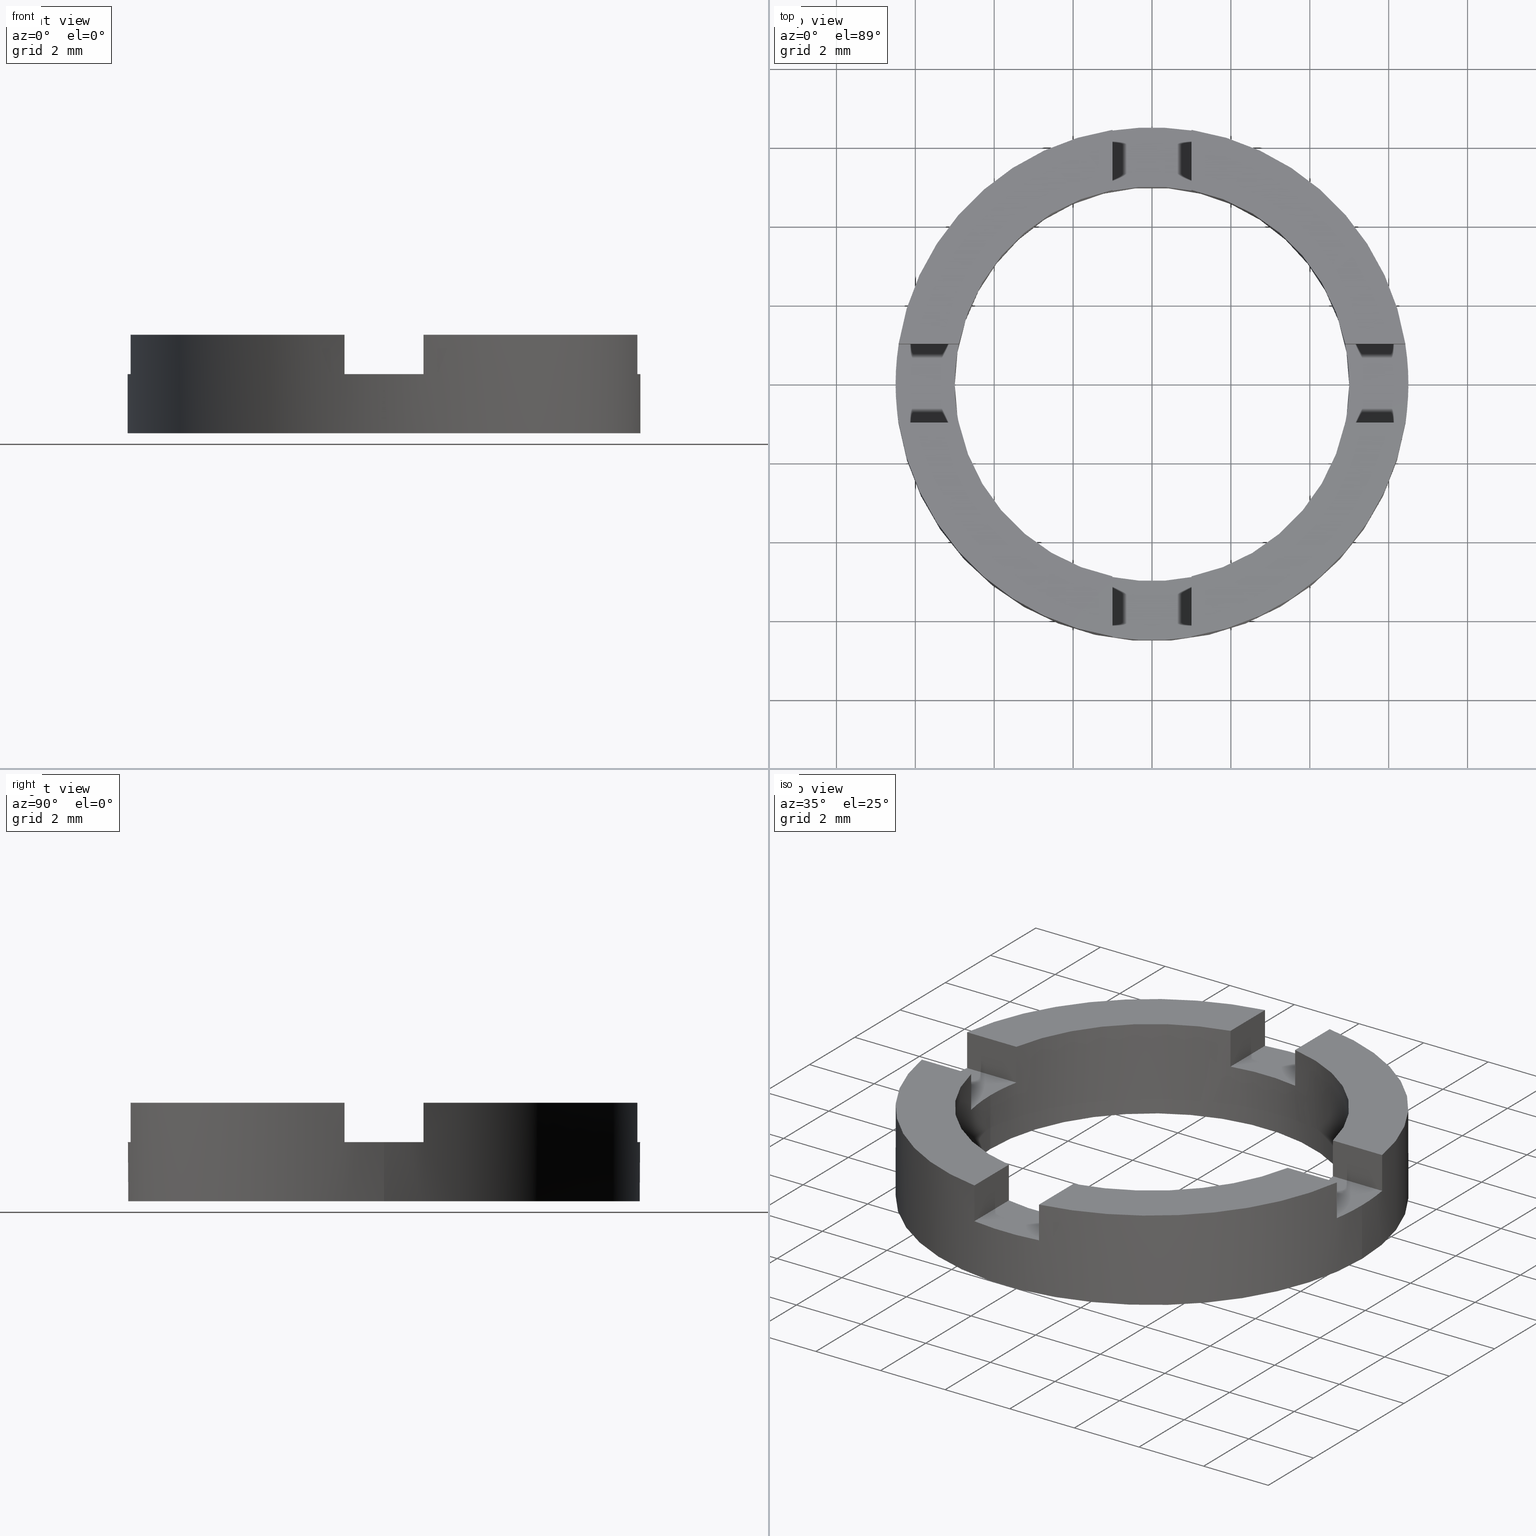
[diagram: canonical four-view strip — front | top / right | iso, engineering-drawing reading convention]
A machine part, canonical four-view strip (front | top / right | iso — engineering-drawing reading convention). The complete STEP part file that produces these views, byte-faithful:
ISO-10303-21;
HEADER;
FILE_DESCRIPTION (( 'STEP AP203' ),
    '1' );
FILE_NAME ('514032.step',
    '2024-12-26T02:31:02',
    ( 'MSI' ),
    ( '' ),
    'SwSTEP 2.0',
    'SolidWorks 2020',
    '' );
FILE_SCHEMA (( 'CONFIG_CONTROL_DESIGN' ));
ENDSEC;

DATA;
#1 = DIRECTION ( 'NONE',  ( 0.000000000000000000, 0.000000000000000000, -1.000000000000000000 ) ) ;
#2 = PERSON_AND_ORGANIZATION_ROLE ( 'creator' ) ;
#3 = ORIENTED_EDGE ( 'NONE', *, *, #43, .T. ) ;
#4 = ORIENTED_EDGE ( 'NONE', *, *, #478, .T. ) ;
#5 = CARTESIAN_POINT ( 'NONE',  ( -0.9999999999999986677, 0.000000000000000000, 2.500000000000000000 ) ) ;
#6 = CARTESIAN_POINT ( 'NONE',  ( 1.000000000000001332, 0.000000000000000000, 2.500000000000000000 ) ) ;
#7 = APPROVAL_STATUS ( 'not_yet_approved' ) ;
#8 = DIRECTION ( 'NONE',  ( -0.000000000000000000, -0.000000000000000000, -1.000000000000000000 ) ) ;
#9 = CARTESIAN_POINT ( 'NONE',  ( 6.422616289332569117, 0.9999999999999749090, 1.500000000000000000 ) ) ;
#10 = CARTESIAN_POINT ( 'NONE',  ( -0.9999999999999986677, 4.898979485566356651, 1.500000000000000000 ) ) ;
#11 = AXIS2_PLACEMENT_3D ( 'NONE', #739, #507, #759 ) ;
#12 = CARTESIAN_POINT ( 'NONE',  ( 1.000000000000001332, 6.422616289332564676, 1.500000000000000000 ) ) ;
#13 = DIRECTION ( 'NONE',  ( 0.000000000000000000, 0.000000000000000000, 1.000000000000000000 ) ) ;
#14 = VERTEX_POINT ( 'NONE', #166 ) ;
#15 = EDGE_LOOP ( 'NONE', ( #261, #4, #444, #628, #541, #105, #370, #594, #532, #190, #615, #154 ) ) ;
#16 = DIRECTION ( 'NONE',  ( 0.000000000000000000, 0.000000000000000000, 1.000000000000000000 ) ) ;
#17 = CARTESIAN_POINT ( 'NONE',  ( 0.000000000000000000, 0.000000000000000000, 2.500000000000000000 ) ) ;
#18 = ORIENTED_EDGE ( 'NONE', *, *, #228, .F. ) ;
#19 = ORIENTED_EDGE ( 'NONE', *, *, #480, .F. ) ;
#20 = ORIENTED_EDGE ( 'NONE', *, *, #783, .T. ) ;
#21 = EDGE_CURVE ( 'NONE', #359, #278, #650, .T. ) ;
#22 = DIRECTION ( 'NONE',  ( 0.000000000000000000, 0.000000000000000000, -1.000000000000000000 ) ) ;
#23 = VERTEX_POINT ( 'NONE', #407 ) ;
#24 = DIRECTION ( 'NONE',  ( -0.000000000000000000, 0.000000000000000000, 1.000000000000000000 ) ) ;
#25 = CARTESIAN_POINT ( 'NONE',  ( -3.736327486719281491E-15, -1.000000000000001110, 1.500000000000000000 ) ) ;
#26 = DIRECTION ( 'NONE',  ( -0.000000000000000000, 0.000000000000000000, 1.000000000000000000 ) ) ;
#27 = ORIENTED_EDGE ( 'NONE', *, *, #482, .F. ) ;
#28 = ADVANCED_FACE ( 'NONE', ( #378 ), #383, .F. ) ;
#29 = ORIENTED_EDGE ( 'NONE', *, *, #111, .T. ) ;
#30 = ORIENTED_EDGE ( 'NONE', *, *, #147, .T. ) ;
#31 = CARTESIAN_POINT ( 'NONE',  ( -0.9999999999999986677, 0.000000000000000000, 1.500000000000000000 ) ) ;
#32 = ORIENTED_EDGE ( 'NONE', *, *, #226, .F. ) ;
#33 = ORIENTED_EDGE ( 'NONE', *, *, #478, .F. ) ;
#34 = EDGE_CURVE ( 'NONE', #606, #284, #644, .T. ) ;
#35 = CARTESIAN_POINT ( 'NONE',  ( -4.898979485566353098, 1.000000000000017097, 1.500000000000000000 ) ) ;
#36 = EDGE_CURVE ( 'NONE', #14, #606, #134, .T. ) ;
#37 = CARTESIAN_POINT ( 'NONE',  ( -3.736327486719281491E-15, -1.000000000000001110, 1.500000000000000000 ) ) ;
#38 = AXIS2_PLACEMENT_3D ( 'NONE', #37, #184, #481 ) ;
#39 = EDGE_CURVE ( 'NONE', #697, #195, #647, .T. ) ;
#40 = ADVANCED_FACE ( 'NONE', ( #126 ), #607, .F. ) ;
#41 = DIRECTION ( 'NONE',  ( 1.000000000000000000, 0.000000000000000000, 0.000000000000000000 ) ) ;
#42 = APPROVAL_DATE_TIME ( #45, #440 ) ;
#43 = EDGE_CURVE ( 'NONE', #133, #14, #374, .T. ) ;
#44 = DIRECTION ( 'NONE',  ( 0.000000000000000000, 0.000000000000000000, 1.000000000000000000 ) ) ;
#45 = DATE_AND_TIME ( #297, #308 ) ;
#46 = LINE ( 'NONE', #94, #338 ) ;
#47 = DIRECTION ( 'NONE',  ( 0.000000000000000000, -0.000000000000000000, -1.000000000000000000 ) ) ;
#48 = PERSON_AND_ORGANIZATION ( #757, #627 ) ;
#49 = CIRCLE ( 'NONE', #554, 5.000000000000000000 ) ;
#50 = PERSON_AND_ORGANIZATION ( #757, #627 ) ;
#51 = CIRCLE ( 'NONE', #525, 5.000000000000000000 ) ;
#52 = DATE_AND_TIME ( #90, #313 ) ;
#53 = LINE ( 'NONE', #9, #602 ) ;
#54 = FACE_OUTER_BOUND ( 'NONE', #528, .T. ) ;
#55 = LINE ( 'NONE', #424, #576 ) ;
#56 = CC_DESIGN_PERSON_AND_ORGANIZATION_ASSIGNMENT ( #585, #317, ( #732 ) ) ;
#57 = PERSON_AND_ORGANIZATION_ROLE ( 'design_supplier' ) ;
#58 = CALENDAR_DATE ( 2024, 26, 12 ) ;
#59 = LINE ( 'NONE', #471, #358 ) ;
#60 = CC_DESIGN_PERSON_AND_ORGANIZATION_ASSIGNMENT ( #119, #738, ( #688 ) ) ;
#61 = PLANE ( 'NONE',  #434 ) ;
#62 = FACE_OUTER_BOUND ( 'NONE', #630, .T. ) ;
#63 = VECTOR ( 'NONE', #188, 1000.000000000000000 ) ;
#64 = APPROVAL_DATE_TIME ( #52, #740 ) ;
#65 = AXIS2_PLACEMENT_3D ( 'NONE', #442, #687, #593 ) ;
#66 = LINE ( 'NONE', #122, #581 ) ;
#67 = VECTOR ( 'NONE', #512, 1000.000000000000000 ) ;
#68 = DATE_AND_TIME ( #330, #777 ) ;
#69 = FACE_OUTER_BOUND ( 'NONE', #411, .T. ) ;
#70 = FACE_OUTER_BOUND ( 'NONE', #399, .T. ) ;
#71 = DATE_AND_TIME ( #58, #567 ) ;
#72 = CIRCLE ( 'NONE', #755, 5.000000000000000000 ) ;
#73 = VECTOR ( 'NONE', #536, 1000.000000000000000 ) ;
#74 = CARTESIAN_POINT ( 'NONE',  ( 1.000000000000001332, 0.000000000000000000, 1.500000000000000000 ) ) ;
#75 = VECTOR ( 'NONE', #497, 1000.000000000000000 ) ;
#76 = VECTOR ( 'NONE', #742, 1000.000000000000000 ) ;
#77 = FACE_OUTER_BOUND ( 'NONE', #646, .T. ) ;
#78 = FACE_OUTER_BOUND ( 'NONE', #493, .T. ) ;
#79 = CARTESIAN_POINT ( 'NONE',  ( 0.000000000000000000, 0.000000000000000000, 1.500000000000000000 ) ) ;
#80 = ORIENTED_EDGE ( 'NONE', *, *, #271, .T. ) ;
#81 = LINE ( 'NONE', #529, #106 ) ;
#82 = EDGE_CURVE ( 'NONE', #380, #606, #633, .T. ) ;
#83 = CARTESIAN_POINT ( 'NONE',  ( -3.736327486719281491E-15, -1.000000000000001110, 1.500000000000000000 ) ) ;
#84 = VERTEX_POINT ( 'NONE', #303 ) ;
#85 = VECTOR ( 'NONE', #265, 1000.000000000000000 ) ;
#86 = COORDINATED_UNIVERSAL_TIME_OFFSET ( 8, 0, .AHEAD. ) ;
#87 = FACE_OUTER_BOUND ( 'NONE', #356, .T. ) ;
#88 = ORIENTED_EDGE ( 'NONE', *, *, #161, .F. ) ;
#89 = CIRCLE ( 'NONE', #132, 5.000000000000000000 ) ;
#90 = CALENDAR_DATE ( 2024, 26, 12 ) ;
#91 = FACE_OUTER_BOUND ( 'NONE', #387, .T. ) ;
#92 = APPLICATION_CONTEXT ( 'configuration controlled 3d designs of mechanical parts and assemblies' ) ;
#93 = FACE_OUTER_BOUND ( 'NONE', #409, .T. ) ;
#94 = CARTESIAN_POINT ( 'NONE',  ( 5.000000000000000000, 6.123233995736766282E-16, 2.500000000000000000 ) ) ;
#95 = VERTEX_POINT ( 'NONE', #462 ) ;
#96 = VECTOR ( 'NONE', #252, 1000.000000000000000 ) ;
#97 = DIRECTION ( 'NONE',  ( 1.000000000000000000, 0.000000000000000000, 0.000000000000000000 ) ) ;
#98 = LINE ( 'NONE', #553, #320 ) ;
#99 = ORIENTED_EDGE ( 'NONE', *, *, #715, .T. ) ;
#100 = LINE ( 'NONE', #492, #73 ) ;
#101 = CIRCLE ( 'NONE', #744, 5.000000000000000000 ) ;
#102 = ORIENTED_EDGE ( 'NONE', *, *, #456, .F. ) ;
#103 = VECTOR ( 'NONE', #172, 1000.000000000000000 ) ;
#104 = LINE ( 'NONE', #83, #75 ) ;
#105 = ORIENTED_EDGE ( 'NONE', *, *, #728, .T. ) ;
#106 = VECTOR ( 'NONE', #384, 1000.000000000000000 ) ;
#107 = APPROVAL_ROLE ( '' ) ;
#108 = EDGE_CURVE ( 'NONE', #23, #130, #350, .T. ) ;
#109 = APPROVAL_PERSON_ORGANIZATION ( #123, #524, #695 ) ;
#110 = DIRECTION ( 'NONE',  ( -0.000000000000000000, -0.000000000000000000, 1.000000000000000000 ) ) ;
#111 = EDGE_CURVE ( 'NONE', #151, #284, #100, .T. ) ;
#112 = ORIENTED_EDGE ( 'NONE', *, *, #290, .T. ) ;
#113 = LINE ( 'NONE', #6, #629 ) ;
#114 = DIRECTION ( 'NONE',  ( 1.000000000000000000, 0.000000000000000000, 0.000000000000000000 ) ) ;
#115 = VERTEX_POINT ( 'NONE', #624 ) ;
#116 = LINE ( 'NONE', #209, #333 ) ;
#117 = VERTEX_POINT ( 'NONE', #693 ) ;
#118 = CIRCLE ( 'NONE', #65, 6.500000000000000888 ) ;
#119 = PERSON_AND_ORGANIZATION ( #757, #627 ) ;
#120 = ORIENTED_EDGE ( 'NONE', *, *, #715, .F. ) ;
#121 = LINE ( 'NONE', #782, #329 ) ;
#122 = CARTESIAN_POINT ( 'NONE',  ( 1.000000000000001332, 0.000000000000000000, 1.500000000000000000 ) ) ;
#123 = PERSON_AND_ORGANIZATION ( #757, #627 ) ;
#124 = PLANE ( 'NONE',  #589 ) ;
#125 = ORIENTED_EDGE ( 'NONE', *, *, #161, .T. ) ;
#126 = FACE_OUTER_BOUND ( 'NONE', #716, .T. ) ;
#127 = DIRECTION ( 'NONE',  ( 1.000000000000000000, -3.736327486719276758E-15, 0.000000000000000000 ) ) ;
#128 = CARTESIAN_POINT ( 'NONE',  ( 0.000000000000000000, 0.000000000000000000, 1.500000000000000000 ) ) ;
#129 = ORIENTED_EDGE ( 'NONE', *, *, #447, .F. ) ;
#130 = VERTEX_POINT ( 'NONE', #519 ) ;
#131 = VERTEX_POINT ( 'NONE', #227 ) ;
#132 = AXIS2_PLACEMENT_3D ( 'NONE', #445, #47, #612 ) ;
#133 = VERTEX_POINT ( 'NONE', #230 ) ;
#134 = LINE ( 'NONE', #5, #381 ) ;
#135 = DIRECTION ( 'NONE',  ( 1.000000000000000000, 0.000000000000000000, 0.000000000000000000 ) ) ;
#136 = ORIENTED_EDGE ( 'NONE', *, *, #203, .F. ) ;
#137 = VECTOR ( 'NONE', #503, 1000.000000000000000 ) ;
#138 = CARTESIAN_POINT ( 'NONE',  ( 1.000000000000001332, 4.898979485566355763, 1.500000000000000000 ) ) ;
#139 = ORIENTED_EDGE ( 'NONE', *, *, #391, .F. ) ;
#140 = DIRECTION ( 'NONE',  ( 1.000000000000000000, -3.736327486719276758E-15, 0.000000000000000000 ) ) ;
#141 = ORIENTED_EDGE ( 'NONE', *, *, #771, .F. ) ;
#142 = ORIENTED_EDGE ( 'NONE', *, *, #403, .T. ) ;
#143 = ORIENTED_EDGE ( 'NONE', *, *, #147, .F. ) ;
#144 = CARTESIAN_POINT ( 'NONE',  ( 0.000000000000000000, 0.000000000000000000, 0.000000000000000000 ) ) ;
#145 = ORIENTED_EDGE ( 'NONE', *, *, #39, .T. ) ;
#146 = DIRECTION ( 'NONE',  ( -0.000000000000000000, 0.000000000000000000, 1.000000000000000000 ) ) ;
#147 = EDGE_CURVE ( 'NONE', #130, #195, #595, .T. ) ;
#148 = ORIENTED_EDGE ( 'NONE', *, *, #326, .T. ) ;
#149 = ORIENTED_EDGE ( 'NONE', *, *, #560, .F. ) ;
#150 = ORIENTED_EDGE ( 'NONE', *, *, #21, .F. ) ;
#151 = VERTEX_POINT ( 'NONE', #272 ) ;
#152 = ORIENTED_EDGE ( 'NONE', *, *, #636, .T. ) ;
#153 = VERTEX_POINT ( 'NONE', #362 ) ;
#154 = ORIENTED_EDGE ( 'NONE', *, *, #428, .F. ) ;
#155 = ORIENTED_EDGE ( 'NONE', *, *, #705, .F. ) ;
#156 = DIRECTION ( 'NONE',  ( -1.000000000000000000, 0.000000000000000000, 0.000000000000000000 ) ) ;
#157 = ORIENTED_EDGE ( 'NONE', *, *, #249, .T. ) ;
#158 = EDGE_CURVE ( 'NONE', #496, #195, #315, .T. ) ;
#159 = CARTESIAN_POINT ( 'NONE',  ( 1.000000000000001332, 0.000000000000000000, 1.500000000000000000 ) ) ;
#160 = AXIS2_PLACEMENT_3D ( 'NONE', #251, #301, #483 ) ;
#161 = EDGE_CURVE ( 'NONE', #133, #380, #588, .T. ) ;
#162 = CARTESIAN_POINT ( 'NONE',  ( 1.000000000000001332, -6.422616289332564676, 1.500000000000000000 ) ) ;
#163 = CC_DESIGN_DATE_AND_TIME_ASSIGNMENT ( #68, #743, ( #569 ) ) ;
#164 = CARTESIAN_POINT ( 'NONE',  ( 1.000000000000001332, 6.422616289332564676, 1.500000000000000000 ) ) ;
#165 = AXIS2_PLACEMENT_3D ( 'NONE', #288, #488, #485 ) ;
#166 = CARTESIAN_POINT ( 'NONE',  ( -0.9999999999999986677, 4.898979485566356651, 2.500000000000000000 ) ) ;
#167 = ADVANCED_FACE ( 'NONE', ( #626 ), #562, .F. ) ;
#168 = DIRECTION ( 'NONE',  ( 1.000000000000000000, -3.736327486719276758E-15, 0.000000000000000000 ) ) ;
#169 = APPROVAL_ROLE ( '' ) ;
#170 = DIRECTION ( 'NONE',  ( 1.000000000000000000, 0.000000000000000000, 0.000000000000000000 ) ) ;
#171 = DIRECTION ( 'NONE',  ( -0.000000000000000000, -0.000000000000000000, 1.000000000000000000 ) ) ;
#172 = DIRECTION ( 'NONE',  ( -0.000000000000000000, -0.000000000000000000, 1.000000000000000000 ) ) ;
#173 = PLANE ( 'NONE',  #779 ) ;
#174 = AXIS2_PLACEMENT_3D ( 'NONE', #379, #215, #439 ) ;
#175 = APPROVAL_STATUS ( 'not_yet_approved' ) ;
#176 = DIRECTION ( 'NONE',  ( -3.736327486719276758E-15, -1.000000000000000000, 0.000000000000000000 ) ) ;
#177 = CARTESIAN_POINT ( 'NONE',  ( -0.9999999999999986677, -4.898979485566356651, 1.500000000000000000 ) ) ;
#178 = CLOSED_SHELL ( 'NONE', ( #28, #296, #505, #280, #521, #299, #348, #40, #200, #694, #635, #620, #500, #167, #410, #459, #486, #586, #761, #291, #526 ) ) ;
#179 = ORIENTED_EDGE ( 'NONE', *, *, #456, .T. ) ;
#180 = CARTESIAN_POINT ( 'NONE',  ( 0.000000000000000000, 0.000000000000000000, 1.500000000000000000 ) ) ;
#181 = EDGE_CURVE ( 'NONE', #760, #697, #344, .T. ) ;
#182 = EDGE_CURVE ( 'NONE', #192, #678, #354, .T. ) ;
#183 = DIRECTION ( 'NONE',  ( -0.000000000000000000, 0.000000000000000000, 1.000000000000000000 ) ) ;
#184 = DIRECTION ( 'NONE',  ( -3.736327486719276758E-15, -1.000000000000000000, 0.000000000000000000 ) ) ;
#185 = VERTEX_POINT ( 'NONE', #515 ) ;
#186 = DIRECTION ( 'NONE',  ( 1.000000000000000000, 0.000000000000000000, 0.000000000000000000 ) ) ;
#187 = VERTEX_POINT ( 'NONE', #767 ) ;
#188 = DIRECTION ( 'NONE',  ( -0.000000000000000000, -0.000000000000000000, 1.000000000000000000 ) ) ;
#189 = CARTESIAN_POINT ( 'NONE',  ( -3.736327486719281491E-15, -1.000000000000001110, 2.500000000000000000 ) ) ;
#190 = ORIENTED_EDGE ( 'NONE', *, *, #226, .T. ) ;
#191 = AXIS2_PLACEMENT_3D ( 'NONE', #250, #765, #259 ) ;
#192 = VERTEX_POINT ( 'NONE', #268 ) ;
#193 = DIRECTION ( 'NONE',  ( 0.000000000000000000, 0.000000000000000000, 1.000000000000000000 ) ) ;
#194 = ORIENTED_EDGE ( 'NONE', *, *, #614, .T. ) ;
#195 = VERTEX_POINT ( 'NONE', #727 ) ;
#196 = ORIENTED_EDGE ( 'NONE', *, *, #681, .F. ) ;
#197 = ORIENTED_EDGE ( 'NONE', *, *, #243, .F. ) ;
#198 = ORIENTED_EDGE ( 'NONE', *, *, #290, .F. ) ;
#199 = CC_DESIGN_PERSON_AND_ORGANIZATION_ASSIGNMENT ( #238, #2, ( #569 ) ) ;
#200 = ADVANCED_FACE ( 'NONE', ( #357, #325 ), #346, .F. ) ;
#201 = DIRECTION ( 'NONE',  ( 1.000000000000000000, -3.736327486719276758E-15, 0.000000000000000000 ) ) ;
#202 = PLANE ( 'NONE',  #267 ) ;
#203 = EDGE_CURVE ( 'NONE', #279, #653, #339, .T. ) ;
#204 = EDGE_CURVE ( 'NONE', #279, #23, #584, .T. ) ;
#205 = CARTESIAN_POINT ( 'NONE',  ( 4.898979485566360204, 0.9999999999999806821, 1.500000000000000000 ) ) ;
#206 = EDGE_CURVE ( 'NONE', #14, #625, #604, .T. ) ;
#207 = DIRECTION ( 'NONE',  ( -0.000000000000000000, -0.000000000000000000, 1.000000000000000000 ) ) ;
#208 = DIRECTION ( 'NONE',  ( -1.000000000000000000, 0.000000000000000000, 0.000000000000000000 ) ) ;
#209 = CARTESIAN_POINT ( 'NONE',  ( 3.736327486719272814E-15, 0.9999999999999988898, 1.500000000000000000 ) ) ;
#210 = CC_DESIGN_APPROVAL ( #440, ( #732 ) ) ;
#211 = DIRECTION ( 'NONE',  ( 1.000000000000000000, 0.000000000000000000, -0.000000000000000000 ) ) ;
#212 = AXIS2_PLACEMENT_3D ( 'NONE', #425, #470, #679 ) ;
#213 = CARTESIAN_POINT ( 'NONE',  ( -0.9999999999999986677, 6.422616289332565565, 1.500000000000000000 ) ) ;
#214 = CARTESIAN_POINT ( 'NONE',  ( 3.736327486719272814E-15, 0.9999999999999988898, 1.500000000000000000 ) ) ;
#215 = DIRECTION ( 'NONE',  ( -0.000000000000000000, 0.000000000000000000, 1.000000000000000000 ) ) ;
#216 =( NAMED_UNIT ( * ) PLANE_ANGLE_UNIT ( ) SI_UNIT ( $, .RADIAN. ) );
#217 = CARTESIAN_POINT ( 'NONE',  ( 4.898979485566353098, -1.000000000000019318, 1.500000000000000000 ) ) ;
#218 = CARTESIAN_POINT ( 'NONE',  ( 0.000000000000000000, 0.000000000000000000, 2.500000000000000000 ) ) ;
#219 = AXIS2_PLACEMENT_3D ( 'NONE', #31, #135, #22 ) ;
#220 = DIRECTION ( 'NONE',  ( 1.000000000000000000, -3.736327486719276758E-15, 0.000000000000000000 ) ) ;
#221 = CARTESIAN_POINT ( 'NONE',  ( 5.000000000000000000, 6.123233995736766282E-16, 0.000000000000000000 ) ) ;
#222 = CARTESIAN_POINT ( 'NONE',  ( -0.9999999999999986677, 0.000000000000000000, 2.500000000000000000 ) ) ;
#223 = CARTESIAN_POINT ( 'NONE',  ( 6.422616289332561124, -1.000000000000025091, 2.500000000000000000 ) ) ;
#224 = CARTESIAN_POINT ( 'NONE',  ( 0.000000000000000000, 0.000000000000000000, 1.500000000000000000 ) ) ;
#225 = DIRECTION ( 'NONE',  ( 0.000000000000000000, -0.000000000000000000, -1.000000000000000000 ) ) ;
#226 = EDGE_CURVE ( 'NONE', #760, #131, #631, .T. ) ;
#227 = CARTESIAN_POINT ( 'NONE',  ( 1.000000000000001332, -4.898979485566355763, 2.500000000000000000 ) ) ;
#228 = EDGE_CURVE ( 'NONE', #637, #117, #116, .T. ) ;
#229 = ORIENTED_EDGE ( 'NONE', *, *, #465, .F. ) ;
#230 = CARTESIAN_POINT ( 'NONE',  ( -0.9999999999999986677, 4.898979485566356651, 1.500000000000000000 ) ) ;
#231 = ORIENTED_EDGE ( 'NONE', *, *, #574, .T. ) ;
#232 = AXIS2_PLACEMENT_3D ( 'NONE', #128, #26, #186 ) ;
#233 = EDGE_CURVE ( 'NONE', #678, #491, #113, .T. ) ;
#234 = ORIENTED_EDGE ( 'NONE', *, *, #204, .T. ) ;
#235 = EDGE_LOOP ( 'NONE', ( #276, #640, #754, #547 ) ) ;
#236 = CARTESIAN_POINT ( 'NONE',  ( -0.9999999999999986677, 6.422616289332565565, 2.500000000000000000 ) ) ;
#237 = COORDINATED_UNIVERSAL_TIME_OFFSET ( 8, 0, .AHEAD. ) ;
#238 = PERSON_AND_ORGANIZATION ( #757, #627 ) ;
#239 = CARTESIAN_POINT ( 'NONE',  ( 0.000000000000000000, 0.000000000000000000, 2.500000000000000000 ) ) ;
#240 = PLANE ( 'NONE',  #165 ) ;
#241 = APPROVAL_DATE_TIME ( #772, #524 ) ;
#242 = CARTESIAN_POINT ( 'NONE',  ( 6.500000000000000888, 7.960204194457796463E-16, 2.500000000000000000 ) ) ;
#243 = EDGE_CURVE ( 'NONE', #408, #117, #371, .T. ) ;
#244 = DIRECTION ( 'NONE',  ( -0.000000000000000000, -0.000000000000000000, 1.000000000000000000 ) ) ;
#245 = CARTESIAN_POINT ( 'NONE',  ( 0.000000000000000000, 0.000000000000000000, 0.000000000000000000 ) ) ;
#246 = DIRECTION ( 'NONE',  ( 0.000000000000000000, 0.000000000000000000, 1.000000000000000000 ) ) ;
#247 = CC_DESIGN_DATE_AND_TIME_ASSIGNMENT ( #71, #691, ( #533 ) ) ;
#248 = DIRECTION ( 'NONE',  ( 1.000000000000000000, 0.000000000000000000, 0.000000000000000000 ) ) ;
#249 = EDGE_CURVE ( 'NONE', #284, #625, #337, .T. ) ;
#250 = CARTESIAN_POINT ( 'NONE',  ( 0.000000000000000000, 0.000000000000000000, 0.000000000000000000 ) ) ;
#251 = CARTESIAN_POINT ( 'NONE',  ( 0.000000000000000000, 0.000000000000000000, 0.000000000000000000 ) ) ;
#252 = DIRECTION ( 'NONE',  ( -0.000000000000000000, -0.000000000000000000, 1.000000000000000000 ) ) ;
#253 = APPROVAL_STATUS ( 'not_yet_approved' ) ;
#254 = DIRECTION ( 'NONE',  ( -3.736327486719276758E-15, -1.000000000000000000, 0.000000000000000000 ) ) ;
#255 = CARTESIAN_POINT ( 'NONE',  ( -4.898979485566353098, 1.000000000000017097, 2.500000000000000000 ) ) ;
#256 = AXIS2_PLACEMENT_3D ( 'NONE', #292, #398, #450 ) ;
#257 = EDGE_CURVE ( 'NONE', #638, #675, #121, .T. ) ;
#258 = DIRECTION ( 'NONE',  ( 1.000000000000000000, 0.000000000000000000, 0.000000000000000000 ) ) ;
#259 = DIRECTION ( 'NONE',  ( 1.000000000000000000, 0.000000000000000000, 0.000000000000000000 ) ) ;
#260 = DIRECTION ( 'NONE',  ( 0.000000000000000000, 0.000000000000000000, 1.000000000000000000 ) ) ;
#261 = ORIENTED_EDGE ( 'NONE', *, *, #271, .F. ) ;
#262 = ORIENTED_EDGE ( 'NONE', *, *, #725, .F. ) ;
#263 = DIRECTION ( 'NONE',  ( 0.000000000000000000, 1.000000000000000000, -0.000000000000000000 ) ) ;
#264 = CARTESIAN_POINT ( 'NONE',  ( 1.000000000000001332, -6.422616289332564676, 1.500000000000000000 ) ) ;
#265 = DIRECTION ( 'NONE',  ( 0.000000000000000000, 1.000000000000000000, -0.000000000000000000 ) ) ;
#266 = CARTESIAN_POINT ( 'NONE',  ( 1.000000000000001332, 4.898979485566355763, 2.500000000000000000 ) ) ;
#267 = AXIS2_PLACEMENT_3D ( 'NONE', #239, #44, #286 ) ;
#268 = CARTESIAN_POINT ( 'NONE',  ( 1.000000000000001332, 4.898979485566355763, 1.500000000000000000 ) ) ;
#269 = DIRECTION ( 'NONE',  ( 1.000000000000000000, 0.000000000000000000, 0.000000000000000000 ) ) ;
#270 = CC_DESIGN_PERSON_AND_ORGANIZATION_ASSIGNMENT ( #345, #57, ( #732 ) ) ;
#271 = EDGE_CURVE ( 'NONE', #95, #185, #89, .T. ) ;
#272 = CARTESIAN_POINT ( 'NONE',  ( -6.422616289332562012, 1.000000000000023093, 1.500000000000000000 ) ) ;
#273 = EDGE_LOOP ( 'NONE', ( #377, #494, #125, #657 ) ) ;
#274 = AXIS2_PLACEMENT_3D ( 'NONE', #671, #24, #723 ) ;
#275 = ORIENTED_EDGE ( 'NONE', *, *, #326, .F. ) ;
#276 = ORIENTED_EDGE ( 'NONE', *, *, #771, .T. ) ;
#277 = ORIENTED_EDGE ( 'NONE', *, *, #728, .F. ) ;
#278 = VERTEX_POINT ( 'NONE', #531 ) ;
#279 = VERTEX_POINT ( 'NONE', #386 ) ;
#280 = ADVANCED_FACE ( 'NONE', ( #77 ), #240, .T. ) ;
#281 = ORIENTED_EDGE ( 'NONE', *, *, #611, .F. ) ;
#282 = AXIS2_PLACEMENT_3D ( 'NONE', #366, #146, #269 ) ;
#283 = DIRECTION ( 'NONE',  ( -0.000000000000000000, -0.000000000000000000, 1.000000000000000000 ) ) ;
#284 = VERTEX_POINT ( 'NONE', #530 ) ;
#285 = ORIENTED_EDGE ( 'NONE', *, *, #573, .T. ) ;
#286 = DIRECTION ( 'NONE',  ( 1.000000000000000000, 0.000000000000000000, -0.000000000000000000 ) ) ;
#287 = ORIENTED_EDGE ( 'NONE', *, *, #21, .T. ) ;
#288 = CARTESIAN_POINT ( 'NONE',  ( 0.000000000000000000, 0.000000000000000000, 2.500000000000000000 ) ) ;
#289 = ORIENTED_EDGE ( 'NONE', *, *, #513, .F. ) ;
#290 = EDGE_CURVE ( 'NONE', #408, #278, #312, .T. ) ;
#291 = ADVANCED_FACE ( 'NONE', ( #369 ), #394, .F. ) ;
#292 = CARTESIAN_POINT ( 'NONE',  ( 0.000000000000000000, 0.000000000000000000, 2.500000000000000000 ) ) ;
#293 = CARTESIAN_POINT ( 'NONE',  ( -4.898979485566360204, -0.9999999999999829026, 1.500000000000000000 ) ) ;
#294 = AXIS2_PLACEMENT_3D ( 'NONE', #745, #750, #701 ) ;
#295 = SHAPE_DEFINITION_REPRESENTATION ( #571, #616 ) ;
#296 = ADVANCED_FACE ( 'NONE', ( #591 ), #580, .T. ) ;
#297 = CALENDAR_DATE ( 2024, 26, 12 ) ;
#298 = CARTESIAN_POINT ( 'NONE',  ( 1.000000000000001332, -4.898979485566355763, 1.500000000000000000 ) ) ;
#299 = ADVANCED_FACE ( 'NONE', ( #583 ), #202, .T. ) ;
#300 = CARTESIAN_POINT ( 'NONE',  ( 0.000000000000000000, 0.000000000000000000, 1.500000000000000000 ) ) ;
#301 = DIRECTION ( 'NONE',  ( 0.000000000000000000, 0.000000000000000000, 1.000000000000000000 ) ) ;
#302 = VECTOR ( 'NONE', #244, 1000.000000000000000 ) ;
#303 = CARTESIAN_POINT ( 'NONE',  ( 4.898979485566353098, -1.000000000000019318, 2.500000000000000000 ) ) ;
#304 = VECTOR ( 'NONE', #201, 1000.000000000000000 ) ;
#305 = EDGE_CURVE ( 'NONE', #637, #696, #81, .T. ) ;
#306 = FACE_OUTER_BOUND ( 'NONE', #393, .T. ) ;
#307 = CARTESIAN_POINT ( 'NONE',  ( 1.000000000000001332, 0.000000000000000000, 2.500000000000000000 ) ) ;
#308 = LOCAL_TIME ( 10, 31, 2.000000000000000000, #86 ) ;
#309 = LINE ( 'NONE', #654, #336 ) ;
#310 = PLANE ( 'NONE',  #449 ) ;
#311 = VECTOR ( 'NONE', #726, 1000.000000000000000 ) ;
#312 = LINE ( 'NONE', #242, #610 ) ;
#313 = LOCAL_TIME ( 10, 31, 2.000000000000000000, #601 ) ;
#314 = FACE_OUTER_BOUND ( 'NONE', #273, .T. ) ;
#315 = CIRCLE ( 'NONE', #351, 5.000000000000000000 ) ;
#316 = CIRCLE ( 'NONE', #160, 5.000000000000000000 ) ;
#317 = PERSON_AND_ORGANIZATION_ROLE ( 'creator' ) ;
#318 = LINE ( 'NONE', #307, #67 ) ;
#319 = DIRECTION ( 'NONE',  ( 1.000000000000000000, 0.000000000000000000, 0.000000000000000000 ) ) ;
#320 = VECTOR ( 'NONE', #8, 1000.000000000000000 ) ;
#321 = DIRECTION ( 'NONE',  ( -0.000000000000000000, -0.000000000000000000, 1.000000000000000000 ) ) ;
#322 = LINE ( 'NONE', #217, #582 ) ;
#323 = APPROVAL_PERSON_ORGANIZATION ( #596, #440, #107 ) ;
#324 = AXIS2_PLACEMENT_3D ( 'NONE', #648, #703, #748 ) ;
#325 = FACE_BOUND ( 'NONE', #375, .T. ) ;
#326 = EDGE_CURVE ( 'NONE', #638, #408, #118, .T. ) ;
#327 = APPROVAL_PERSON_ORGANIZATION ( #48, #740, #169 ) ;
#328 = CIRCLE ( 'NONE', #556, 5.000000000000000000 ) ;
#329 = VECTOR ( 'NONE', #735, 1000.000000000000000 ) ;
#330 = CALENDAR_DATE ( 2024, 26, 12 ) ;
#331 = LINE ( 'NONE', #189, #311 ) ;
#332 = CARTESIAN_POINT ( 'NONE',  ( 1.000000000000001332, -4.898979485566355763, 1.500000000000000000 ) ) ;
#333 = VECTOR ( 'NONE', #168, 1000.000000000000000 ) ;
#334 = CARTESIAN_POINT ( 'NONE',  ( -0.9999999999999986677, 6.422616289332565565, 1.500000000000000000 ) ) ;
#335 = DIRECTION ( 'NONE',  ( 1.000000000000000000, 0.000000000000000000, 0.000000000000000000 ) ) ;
#336 = VECTOR ( 'NONE', #712, 1000.000000000000000 ) ;
#337 = LINE ( 'NONE', #431, #590 ) ;
#338 = VECTOR ( 'NONE', #508, 1000.000000000000000 ) ;
#339 = LINE ( 'NONE', #25, #600 ) ;
#340 = LINE ( 'NONE', #722, #568 ) ;
#341 = ORIENTED_EDGE ( 'NONE', *, *, #429, .T. ) ;
#342 = LINE ( 'NONE', #162, #572 ) ;
#343 = ORIENTED_EDGE ( 'NONE', *, *, #108, .F. ) ;
#344 = CIRCLE ( 'NONE', #212, 5.000000000000000000 ) ;
#345 = PERSON_AND_ORGANIZATION ( #757, #627 ) ;
#346 = PLANE ( 'NONE',  #463 ) ;
#347 = CIRCLE ( 'NONE', #487, 6.500000000000000888 ) ;
#348 = ADVANCED_FACE ( 'NONE', ( #623 ), #365, .T. ) ;
#349 = ORIENTED_EDGE ( 'NONE', *, *, #182, .F. ) ;
#350 = CIRCLE ( 'NONE', #256, 6.500000000000000888 ) ;
#351 = AXIS2_PLACEMENT_3D ( 'NONE', #776, #193, #335 ) ;
#352 = CIRCLE ( 'NONE', #535, 5.000000000000000000 ) ;
#353 = ORIENTED_EDGE ( 'NONE', *, *, #538, .T. ) ;
#354 = LINE ( 'NONE', #138, #63 ) ;
#355 = CIRCLE ( 'NONE', #729, 6.500000000000000888 ) ;
#356 = EDGE_LOOP ( 'NONE', ( #155, #382, #30, #544 ) ) ;
#357 = FACE_OUTER_BOUND ( 'NONE', #666, .T. ) ;
#358 = VECTOR ( 'NONE', #321, 1000.000000000000000 ) ;
#359 = VERTEX_POINT ( 'NONE', #514 ) ;
#360 = VECTOR ( 'NONE', #477, 1000.000000000000000 ) ;
#361 = MANIFOLD_SOLID_BREP ( '�г�-����1', #178 ) ;
#362 = CARTESIAN_POINT ( 'NONE',  ( -5.000000000000000000, 0.000000000000000000, 1.500000000000000000 ) ) ;
#363 = VECTOR ( 'NONE', #468, 1000.000000000000000 ) ;
#364 = ORIENTED_EDGE ( 'NONE', *, *, #685, .F. ) ;
#365 = CYLINDRICAL_SURFACE ( 'NONE', #455, 6.500000000000000888 ) ;
#366 = CARTESIAN_POINT ( 'NONE',  ( 0.000000000000000000, 0.000000000000000000, 1.500000000000000000 ) ) ;
#367 = LINE ( 'NONE', #662, #304 ) ;
#368 = ORIENTED_EDGE ( 'NONE', *, *, #203, .T. ) ;
#369 = FACE_OUTER_BOUND ( 'NONE', #452, .T. ) ;
#370 = ORIENTED_EDGE ( 'NONE', *, *, #158, .T. ) ;
#371 = CIRCLE ( 'NONE', #282, 6.500000000000000888 ) ;
#372 = ORIENTED_EDGE ( 'NONE', *, *, #36, .T. ) ;
#373 = ORIENTED_EDGE ( 'NONE', *, *, #82, .F. ) ;
#374 = LINE ( 'NONE', #10, #103 ) ;
#375 = EDGE_LOOP ( 'NONE', ( #231, #663 ) ) ;
#376 = VECTOR ( 'NONE', #724, 1000.000000000000000 ) ;
#377 = ORIENTED_EDGE ( 'NONE', *, *, #36, .F. ) ;
#378 = FACE_OUTER_BOUND ( 'NONE', #15, .T. ) ;
#379 = CARTESIAN_POINT ( 'NONE',  ( 0.000000000000000000, 0.000000000000000000, 1.500000000000000000 ) ) ;
#380 = VERTEX_POINT ( 'NONE', #334 ) ;
#381 = VECTOR ( 'NONE', #458, 1000.000000000000000 ) ;
#382 = ORIENTED_EDGE ( 'NONE', *, *, #108, .T. ) ;
#383 = CYLINDRICAL_SURFACE ( 'NONE', #472, 5.000000000000000000 ) ;
#384 = DIRECTION ( 'NONE',  ( -0.000000000000000000, -0.000000000000000000, 1.000000000000000000 ) ) ;
#385 = VERTEX_POINT ( 'NONE', #264 ) ;
#386 = CARTESIAN_POINT ( 'NONE',  ( -6.422616289332568229, -0.9999999999999770184, 1.500000000000000000 ) ) ;
#387 = EDGE_LOOP ( 'NONE', ( #659, #609, #405, #603 ) ) ;
#388 = VERTEX_POINT ( 'NONE', #774 ) ;
#389 = EDGE_CURVE ( 'NONE', #696, #708, #55, .T. ) ;
#390 = VERTEX_POINT ( 'NONE', #221 ) ;
#391 = EDGE_CURVE ( 'NONE', #115, #385, #619, .T. ) ;
#392 = ORIENTED_EDGE ( 'NONE', *, *, #249, .F. ) ;
#393 = EDGE_LOOP ( 'NONE', ( #713, #372, #599, #157 ) ) ;
#394 = PLANE ( 'NONE',  #511 ) ;
#395 = ORIENTED_EDGE ( 'NONE', *, *, #389, .T. ) ;
#396 = ORIENTED_EDGE ( 'NONE', *, *, #305, .F. ) ;
#397 = ORIENTED_EDGE ( 'NONE', *, *, #705, .T. ) ;
#398 = DIRECTION ( 'NONE',  ( 0.000000000000000000, 0.000000000000000000, 1.000000000000000000 ) ) ;
#399 = EDGE_LOOP ( 'NONE', ( #18, #142, #80, #762, #148, #402 ) ) ;
#400 = APPLICATION_PROTOCOL_DEFINITION ( 'international standard', 'config_control_design', 1994, #92 ) ;
#401 = AXIS2_PLACEMENT_3D ( 'NONE', #475, #673, #721 ) ;
#402 = ORIENTED_EDGE ( 'NONE', *, *, #243, .T. ) ;
#403 = EDGE_CURVE ( 'NONE', #637, #95, #578, .T. ) ;
#404 = CARTESIAN_POINT ( 'NONE',  ( 6.422616289332561124, -1.000000000000025091, 1.500000000000000000 ) ) ;
#405 = ORIENTED_EDGE ( 'NONE', *, *, #482, .T. ) ;
#406 = ORIENTED_EDGE ( 'NONE', *, *, #403, .F. ) ;
#407 = CARTESIAN_POINT ( 'NONE',  ( -6.422616289332568229, -0.9999999999999770184, 2.500000000000000000 ) ) ;
#408 = VERTEX_POINT ( 'NONE', #469 ) ;
#409 = EDGE_LOOP ( 'NONE', ( #88, #489, #20, #711 ) ) ;
#410 = ADVANCED_FACE ( 'NONE', ( #70 ), #124, .T. ) ;
#411 = EDGE_LOOP ( 'NONE', ( #392, #539, #545, #763 ) ) ;
#412 = ORIENTED_EDGE ( 'NONE', *, *, #522, .T. ) ;
#413 = DIRECTION ( 'NONE',  ( 1.000000000000000000, 0.000000000000000000, 0.000000000000000000 ) ) ;
#414 = EDGE_CURVE ( 'NONE', #388, #131, #318, .T. ) ;
#415 = CARTESIAN_POINT ( 'NONE',  ( 1.000000000000001332, 6.422616289332564676, 2.500000000000000000 ) ) ;
#416 = PLANE ( 'NONE',  #11 ) ;
#417 = CARTESIAN_POINT ( 'NONE',  ( -0.9999999999999986677, -4.898979485566356651, 1.500000000000000000 ) ) ;
#418 = DIRECTION ( 'NONE',  ( 0.000000000000000000, -0.000000000000000000, -1.000000000000000000 ) ) ;
#419 = DIRECTION ( 'NONE',  ( 1.000000000000000000, 0.000000000000000000, 0.000000000000000000 ) ) ;
#420 = CC_DESIGN_APPROVAL ( #740, ( #533 ) ) ;
#421 = AXIS2_PLACEMENT_3D ( 'NONE', #224, #476, #559 ) ;
#422 = APPLICATION_PROTOCOL_DEFINITION ( 'international standard', 'config_control_design', 1994, #557 ) ;
#423 = CARTESIAN_POINT ( 'NONE',  ( 1.000000000000001332, 0.000000000000000000, 1.500000000000000000 ) ) ;
#424 = CARTESIAN_POINT ( 'NONE',  ( 3.736327486719272814E-15, 0.9999999999999988898, 2.500000000000000000 ) ) ;
#425 = CARTESIAN_POINT ( 'NONE',  ( 0.000000000000000000, 0.000000000000000000, 1.500000000000000000 ) ) ;
#426 = DIRECTION ( 'NONE',  ( 1.000000000000000000, 8.881784197001252323E-15, 0.000000000000000000 ) ) ;
#427 = CARTESIAN_POINT ( 'NONE',  ( 0.000000000000000000, 0.000000000000000000, 2.500000000000000000 ) ) ;
#428 = EDGE_CURVE ( 'NONE', #185, #84, #322, .T. ) ;
#429 = EDGE_CURVE ( 'NONE', #153, #758, #98, .T. ) ;
#430 = CARTESIAN_POINT ( 'NONE',  ( -6.422616289332568229, -0.9999999999999770184, 1.500000000000000000 ) ) ;
#431 = CARTESIAN_POINT ( 'NONE',  ( 3.736327486719272814E-15, 0.9999999999999988898, 2.500000000000000000 ) ) ;
#432 = DIRECTION ( 'NONE',  ( -0.000000000000000000, 0.000000000000000000, 1.000000000000000000 ) ) ;
#433 = CARTESIAN_POINT ( 'NONE',  ( -0.9999999999999986677, 0.000000000000000000, 1.500000000000000000 ) ) ;
#434 = AXIS2_PLACEMENT_3D ( 'NONE', #746, #509, #211 ) ;
#435 = EDGE_LOOP ( 'NONE', ( #149, #618, #99, #368, #649, #179 ) ) ;
#436 = ORIENTED_EDGE ( 'NONE', *, *, #614, .F. ) ;
#437 = ORIENTED_EDGE ( 'NONE', *, *, #783, .F. ) ;
#438 = ORIENTED_EDGE ( 'NONE', *, *, #681, .T. ) ;
#439 = DIRECTION ( 'NONE',  ( 1.000000000000000000, 0.000000000000000000, 0.000000000000000000 ) ) ;
#440 = APPROVAL ( #175, 'δָ��' ) ;
#441 = AXIS2_PLACEMENT_3D ( 'NONE', #718, #176, #464 ) ;
#442 = CARTESIAN_POINT ( 'NONE',  ( 0.000000000000000000, 0.000000000000000000, 1.500000000000000000 ) ) ;
#443 = DIRECTION ( 'NONE',  ( 1.000000000000000000, -3.736327486719276758E-15, 0.000000000000000000 ) ) ;
#444 = ORIENTED_EDGE ( 'NONE', *, *, #574, .F. ) ;
#445 = CARTESIAN_POINT ( 'NONE',  ( 0.000000000000000000, 0.000000000000000000, 1.500000000000000000 ) ) ;
#446 = ORIENTED_EDGE ( 'NONE', *, *, #204, .F. ) ;
#447 = EDGE_CURVE ( 'NONE', #390, #758, #72, .T. ) ;
#448 = ORIENTED_EDGE ( 'NONE', *, *, #34, .F. ) ;
#449 = AXIS2_PLACEMENT_3D ( 'NONE', #74, #419, #1 ) ;
#450 = DIRECTION ( 'NONE',  ( 1.000000000000000000, 0.000000000000000000, 0.000000000000000000 ) ) ;
#451 = VERTEX_POINT ( 'NONE', #12 ) ;
#452 = EDGE_LOOP ( 'NONE', ( #665, #752, #437, #652 ) ) ;
#453 = DIRECTION ( 'NONE',  ( -0.000000000000000000, -0.000000000000000000, -1.000000000000000000 ) ) ;
#454 = DIRECTION ( 'NONE',  ( 1.000000000000000000, 0.000000000000000000, 0.000000000000000000 ) ) ;
#455 = AXIS2_PLACEMENT_3D ( 'NONE', #734, #730, #780 ) ;
#456 = EDGE_CURVE ( 'NONE', #153, #709, #101, .T. ) ;
#457 = CARTESIAN_POINT ( 'NONE',  ( 0.000000000000000000, 0.000000000000000000, 2.500000000000000000 ) ) ;
#458 = DIRECTION ( 'NONE',  ( 0.000000000000000000, 1.000000000000000000, -0.000000000000000000 ) ) ;
#459 = ADVANCED_FACE ( 'NONE', ( #69 ), #670, .T. ) ;
#460 = CARTESIAN_POINT ( 'NONE',  ( -4.898979485566360204, -0.9999999999999829026, 2.500000000000000000 ) ) ;
#461 = CARTESIAN_POINT ( 'NONE',  ( 0.000000000000000000, 0.000000000000000000, 1.500000000000000000 ) ) ;
#462 = CARTESIAN_POINT ( 'NONE',  ( 5.000000000000000000, 6.123233995736766282E-16, 1.500000000000000000 ) ) ;
#463 = AXIS2_PLACEMENT_3D ( 'NONE', #144, #672, #720 ) ;
#464 = DIRECTION ( 'NONE',  ( 1.000000000000000000, -3.736327486719276758E-15, 0.000000000000000000 ) ) ;
#465 = EDGE_CURVE ( 'NONE', #278, #359, #617, .T. ) ;
#466 = CARTESIAN_POINT ( 'NONE',  ( 0.000000000000000000, 0.000000000000000000, 2.500000000000000000 ) ) ;
#467 = DIRECTION ( 'NONE',  ( 0.000000000000000000, 0.000000000000000000, 1.000000000000000000 ) ) ;
#468 = DIRECTION ( 'NONE',  ( 0.000000000000000000, 1.000000000000000000, -0.000000000000000000 ) ) ;
#469 = CARTESIAN_POINT ( 'NONE',  ( 6.500000000000000888, 7.960204194457796463E-16, 1.500000000000000000 ) ) ;
#470 = DIRECTION ( 'NONE',  ( 0.000000000000000000, -0.000000000000000000, -1.000000000000000000 ) ) ;
#471 = CARTESIAN_POINT ( 'NONE',  ( -4.898979485566353098, 1.000000000000017097, 1.500000000000000000 ) ) ;
#472 = AXIS2_PLACEMENT_3D ( 'NONE', #499, #453, #208 ) ;
#473 = CARTESIAN_POINT ( 'NONE',  ( -6.500000000000000888, 0.000000000000000000, 2.500000000000000000 ) ) ;
#474 = DIRECTION ( 'NONE',  ( 1.000000000000000000, -3.736327486719276758E-15, 0.000000000000000000 ) ) ;
#475 = CARTESIAN_POINT ( 'NONE',  ( -0.9999999999999986677, 0.000000000000000000, 1.500000000000000000 ) ) ;
#476 = DIRECTION ( 'NONE',  ( -0.000000000000000000, 0.000000000000000000, 1.000000000000000000 ) ) ;
#477 = DIRECTION ( 'NONE',  ( -0.000000000000000000, -0.000000000000000000, 1.000000000000000000 ) ) ;
#478 = EDGE_CURVE ( 'NONE', #95, #390, #46, .T. ) ;
#479 = CARTESIAN_POINT ( 'NONE',  ( 0.000000000000000000, 0.000000000000000000, 1.500000000000000000 ) ) ;
#480 = EDGE_CURVE ( 'NONE', #133, #192, #49, .T. ) ;
#481 = DIRECTION ( 'NONE',  ( 1.000000000000000000, -3.736327486719276758E-15, 0.000000000000000000 ) ) ;
#482 = EDGE_CURVE ( 'NONE', #385, #760, #605, .T. ) ;
#483 = DIRECTION ( 'NONE',  ( 1.000000000000000000, 0.000000000000000000, 0.000000000000000000 ) ) ;
#484 = DIRECTION ( 'NONE',  ( 0.000000000000000000, 0.000000000000000000, -1.000000000000000000 ) ) ;
#485 = DIRECTION ( 'NONE',  ( 1.000000000000000000, 0.000000000000000000, -0.000000000000000000 ) ) ;
#486 = ADVANCED_FACE ( 'NONE', ( #78 ), #642, .F. ) ;
#487 = AXIS2_PLACEMENT_3D ( 'NONE', #466, #13, #114 ) ;
#488 = DIRECTION ( 'NONE',  ( 0.000000000000000000, 0.000000000000000000, 1.000000000000000000 ) ) ;
#489 = ORIENTED_EDGE ( 'NONE', *, *, #480, .T. ) ;
#490 = ORIENTED_EDGE ( 'NONE', *, *, #683, .F. ) ;
#491 = VERTEX_POINT ( 'NONE', #415 ) ;
#492 = CARTESIAN_POINT ( 'NONE',  ( -6.422616289332562012, 1.000000000000023093, 1.500000000000000000 ) ) ;
#493 = EDGE_LOOP ( 'NONE', ( #397, #277, #136, #234 ) ) ;
#494 = ORIENTED_EDGE ( 'NONE', *, *, #43, .F. ) ;
#495 = CC_DESIGN_APPROVAL ( #524, ( #569 ) ) ;
#496 = VERTEX_POINT ( 'NONE', #460 ) ;
#497 = DIRECTION ( 'NONE',  ( 1.000000000000000000, -3.736327486719276758E-15, 0.000000000000000000 ) ) ;
#498 = AXIS2_PLACEMENT_3D ( 'NONE', #245, #698, #413 ) ;
#499 = CARTESIAN_POINT ( 'NONE',  ( 0.000000000000000000, 0.000000000000000000, 2.500000000000000000 ) ) ;
#500 = ADVANCED_FACE ( 'NONE', ( #54 ), #173, .T. ) ;
#501 = LOCAL_TIME ( 10, 31, 2.000000000000000000, #237 ) ;
#502 = DIRECTION ( 'NONE',  ( 1.000000000000000000, 0.000000000000000000, -0.000000000000000000 ) ) ;
#503 = DIRECTION ( 'NONE',  ( -0.000000000000000000, -0.000000000000000000, 1.000000000000000000 ) ) ;
#504 = COORDINATED_UNIVERSAL_TIME_OFFSET ( 8, 0, .AHEAD. ) ;
#505 = ADVANCED_FACE ( 'NONE', ( #306 ), #61, .T. ) ;
#506 = EDGE_CURVE ( 'NONE', #185, #638, #104, .T. ) ;
#507 = DIRECTION ( 'NONE',  ( -0.000000000000000000, 0.000000000000000000, 1.000000000000000000 ) ) ;
#508 = DIRECTION ( 'NONE',  ( -0.000000000000000000, -0.000000000000000000, -1.000000000000000000 ) ) ;
#509 = DIRECTION ( 'NONE',  ( 0.000000000000000000, 0.000000000000000000, 1.000000000000000000 ) ) ;
#510 = PERSON_AND_ORGANIZATION_ROLE ( 'classification_officer' ) ;
#511 = AXIS2_PLACEMENT_3D ( 'NONE', #159, #41, #484 ) ;
#512 = DIRECTION ( 'NONE',  ( 0.000000000000000000, 1.000000000000000000, -0.000000000000000000 ) ) ;
#513 = EDGE_CURVE ( 'NONE', #708, #491, #347, .T. ) ;
#514 = CARTESIAN_POINT ( 'NONE',  ( -6.500000000000000888, 0.000000000000000000, 0.000000000000000000 ) ) ;
#515 = CARTESIAN_POINT ( 'NONE',  ( 4.898979485566353098, -1.000000000000019318, 1.500000000000000000 ) ) ;
#516 = DIRECTION ( 'NONE',  ( 1.000000000000000000, 0.000000000000000000, 0.000000000000000000 ) ) ;
#517 = DIRECTION ( 'NONE',  ( -0.000000000000000000, -0.000000000000000000, 1.000000000000000000 ) ) ;
#518 = DIRECTION ( 'NONE',  ( 0.000000000000000000, -0.000000000000000000, -1.000000000000000000 ) ) ;
#519 = CARTESIAN_POINT ( 'NONE',  ( -0.9999999999999986677, -6.422616289332565565, 2.500000000000000000 ) ) ;
#520 = CARTESIAN_POINT ( 'NONE',  ( 4.898979485566360204, 0.9999999999999806821, 2.500000000000000000 ) ) ;
#521 = ADVANCED_FACE ( 'NONE', ( #87 ), #555, .T. ) ;
#522 = EDGE_CURVE ( 'NONE', #451, #491, #570, .T. ) ;
#523 = DIRECTION ( 'NONE',  ( 0.000000000000000000, 0.000000000000000000, 1.000000000000000000 ) ) ;
#524 = APPROVAL ( #253, 'δָ��' ) ;
#525 = AXIS2_PLACEMENT_3D ( 'NONE', #180, #225, #667 ) ;
#526 = ADVANCED_FACE ( 'NONE', ( #93 ), #546, .T. ) ;
#527 = ORIENTED_EDGE ( 'NONE', *, *, #233, .F. ) ;
#528 = EDGE_LOOP ( 'NONE', ( #661, #396, #656, #353 ) ) ;
#529 = CARTESIAN_POINT ( 'NONE',  ( 4.898979485566360204, 0.9999999999999806821, 1.500000000000000000 ) ) ;
#530 = CARTESIAN_POINT ( 'NONE',  ( -6.422616289332562012, 1.000000000000023093, 2.500000000000000000 ) ) ;
#531 = CARTESIAN_POINT ( 'NONE',  ( 6.500000000000000888, 7.960204194457796463E-16, 0.000000000000000000 ) ) ;
#532 = ORIENTED_EDGE ( 'NONE', *, *, #181, .F. ) ;
#533 = SECURITY_CLASSIFICATION ( '', '', #749 ) ;
#534 = ORIENTED_EDGE ( 'NONE', *, *, #736, .F. ) ;
#535 = AXIS2_PLACEMENT_3D ( 'NONE', #427, #769, #516 ) ;
#536 = DIRECTION ( 'NONE',  ( -0.000000000000000000, -0.000000000000000000, 1.000000000000000000 ) ) ;
#537 = ORIENTED_EDGE ( 'NONE', *, *, #538, .F. ) ;
#538 = EDGE_CURVE ( 'NONE', #117, #708, #53, .T. ) ;
#539 = ORIENTED_EDGE ( 'NONE', *, *, #111, .F. ) ;
#540 = EDGE_LOOP ( 'NONE', ( #198, #275, #622, #281, #674, #139, #194, #343, #446, #120, #549, #287 ) ) ;
#541 = ORIENTED_EDGE ( 'NONE', *, *, #733, .F. ) ;
#542 = CARTESIAN_POINT ( 'NONE',  ( 0.000000000000000000, 0.000000000000000000, 2.500000000000000000 ) ) ;
#543 = ORIENTED_EDGE ( 'NONE', *, *, #465, .T. ) ;
#544 = ORIENTED_EDGE ( 'NONE', *, *, #158, .F. ) ;
#545 = ORIENTED_EDGE ( 'NONE', *, *, #560, .T. ) ;
#546 = PLANE ( 'NONE',  #655 ) ;
#547 = ORIENTED_EDGE ( 'NONE', *, *, #428, .T. ) ;
#548 = AXIS2_PLACEMENT_3D ( 'NONE', #17, #751, #97 ) ;
#549 = ORIENTED_EDGE ( 'NONE', *, *, #736, .T. ) ;
#550 = DIRECTION ( 'NONE',  ( 0.000000000000000000, -0.000000000000000000, -1.000000000000000000 ) ) ;
#551 = CC_DESIGN_SECURITY_CLASSIFICATION ( #533, ( #732 ) ) ;
#552 = AXIS2_PLACEMENT_3D ( 'NONE', #700, #467, #258 ) ;
#553 = CARTESIAN_POINT ( 'NONE',  ( -5.000000000000000000, 0.000000000000000000, 2.500000000000000000 ) ) ;
#554 = AXIS2_PLACEMENT_3D ( 'NONE', #300, #550, #660 ) ;
#555 = PLANE ( 'NONE',  #690 ) ;
#556 = AXIS2_PLACEMENT_3D ( 'NONE', #218, #260, #778 ) ;
#557 = APPLICATION_CONTEXT ( 'configuration controlled 3d designs of mechanical parts and assemblies' ) ;
#558 = PLANE ( 'NONE',  #401 ) ;
#559 = DIRECTION ( 'NONE',  ( 1.000000000000000000, 0.000000000000000000, 0.000000000000000000 ) ) ;
#560 = EDGE_CURVE ( 'NONE', #151, #709, #367, .T. ) ;
#561 = DIRECTION ( 'NONE',  ( 1.000000000000000000, 0.000000000000000000, 0.000000000000000000 ) ) ;
#562 = PLANE ( 'NONE',  #38 ) ;
#563 = CARTESIAN_POINT ( 'NONE',  ( 6.422616289332569117, 0.9999999999999749090, 2.500000000000000000 ) ) ;
#564 = COORDINATED_UNIVERSAL_TIME_OFFSET ( 8, 0, .AHEAD. ) ;
#565 = CIRCLE ( 'NONE', #232, 6.500000000000000888 ) ;
#566 = CIRCLE ( 'NONE', #548, 6.500000000000000888 ) ;
#567 = LOCAL_TIME ( 10, 31, 2.000000000000000000, #564 ) ;
#568 = VECTOR ( 'NONE', #517, 1000.000000000000000 ) ;
#569 = PRODUCT_DEFINITION ( 'δ֪', '', #732, #684 ) ;
#570 = LINE ( 'NONE', #164, #302 ) ;
#571 = PRODUCT_DEFINITION_SHAPE ( 'NONE', 'NONE',  #569 ) ;
#572 = VECTOR ( 'NONE', #207, 1000.000000000000000 ) ;
#573 = EDGE_CURVE ( 'NONE', #115, #697, #309, .T. ) ;
#574 = EDGE_CURVE ( 'NONE', #758, #390, #316, .T. ) ;
#575 = LINE ( 'NONE', #473, #587 ) ;
#576 = VECTOR ( 'NONE', #474, 1000.000000000000000 ) ;
#577 = LINE ( 'NONE', #764, #579 ) ;
#578 = CIRCLE ( 'NONE', #686, 5.000000000000000000 ) ;
#579 = VECTOR ( 'NONE', #220, 1000.000000000000000 ) ;
#580 = CYLINDRICAL_SURFACE ( 'NONE', #714, 6.500000000000000888 ) ;
#581 = VECTOR ( 'NONE', #263, 1000.000000000000000 ) ;
#582 = VECTOR ( 'NONE', #110, 1000.000000000000000 ) ;
#583 = FACE_OUTER_BOUND ( 'NONE', #669, .T. ) ;
#584 = LINE ( 'NONE', #430, #360 ) ;
#585 = PERSON_AND_ORGANIZATION ( #757, #627 ) ;
#586 = ADVANCED_FACE ( 'NONE', ( #592 ), #416, .T. ) ;
#587 = VECTOR ( 'NONE', #717, 1000.000000000000000 ) ;
#588 = LINE ( 'NONE', #433, #85 ) ;
#589 = AXIS2_PLACEMENT_3D ( 'NONE', #719, #183, #561 ) ;
#590 = VECTOR ( 'NONE', #443, 1000.000000000000000 ) ;
#591 = FACE_OUTER_BOUND ( 'NONE', #676, .T. ) ;
#592 = FACE_OUTER_BOUND ( 'NONE', #435, .T. ) ;
#593 = DIRECTION ( 'NONE',  ( 1.000000000000000000, 0.000000000000000000, 0.000000000000000000 ) ) ;
#594 = ORIENTED_EDGE ( 'NONE', *, *, #39, .F. ) ;
#595 = LINE ( 'NONE', #222, #376 ) ;
#596 = PERSON_AND_ORGANIZATION ( #757, #627 ) ;
#597 = DIRECTION ( 'NONE',  ( -0.000000000000000000, -0.000000000000000000, -1.000000000000000000 ) ) ;
#598 = FACE_OUTER_BOUND ( 'NONE', #632, .T. ) ;
#599 = ORIENTED_EDGE ( 'NONE', *, *, #34, .T. ) ;
#600 = VECTOR ( 'NONE', #127, 1000.000000000000000 ) ;
#601 = COORDINATED_UNIVERSAL_TIME_OFFSET ( 8, 0, .AHEAD. ) ;
#602 = VECTOR ( 'NONE', #171, 1000.000000000000000 ) ;
#603 = ORIENTED_EDGE ( 'NONE', *, *, #181, .T. ) ;
#604 = CIRCLE ( 'NONE', #634, 5.000000000000000000 ) ;
#605 = LINE ( 'NONE', #423, #363 ) ;
#606 = VERTEX_POINT ( 'NONE', #236 ) ;
#607 = CYLINDRICAL_SURFACE ( 'NONE', #324, 5.000000000000000000 ) ;
#608 = LINE ( 'NONE', #692, #621 ) ;
#609 = ORIENTED_EDGE ( 'NONE', *, *, #391, .T. ) ;
#610 = VECTOR ( 'NONE', #597, 1000.000000000000000 ) ;
#611 = EDGE_CURVE ( 'NONE', #388, #675, #566, .T. ) ;
#612 = DIRECTION ( 'NONE',  ( 1.000000000000000000, 0.000000000000000000, 0.000000000000000000 ) ) ;
#613 = CIRCLE ( 'NONE', #421, 6.500000000000000888 ) ;
#614 = EDGE_CURVE ( 'NONE', #115, #130, #608, .T. ) ;
#615 = ORIENTED_EDGE ( 'NONE', *, *, #704, .T. ) ;
#616 = ADVANCED_BREP_SHAPE_REPRESENTATION ( '514032', ( #361, #552 ), #753 ) ;
#617 = CIRCLE ( 'NONE', #191, 6.500000000000000888 ) ;
#618 = ORIENTED_EDGE ( 'NONE', *, *, #685, .T. ) ;
#619 = CIRCLE ( 'NONE', #274, 6.500000000000000888 ) ;
#620 = ADVANCED_FACE ( 'NONE', ( #91 ), #737, .T. ) ;
#621 = VECTOR ( 'NONE', #283, 1000.000000000000000 ) ;
#622 = ORIENTED_EDGE ( 'NONE', *, *, #257, .T. ) ;
#623 = FACE_OUTER_BOUND ( 'NONE', #540, .T. ) ;
#624 = CARTESIAN_POINT ( 'NONE',  ( -0.9999999999999986677, -6.422616289332565565, 1.500000000000000000 ) ) ;
#625 = VERTEX_POINT ( 'NONE', #255 ) ;
#626 = FACE_OUTER_BOUND ( 'NONE', #235, .T. ) ;
#627 = ORGANIZATION ( 'δָ��', 'δָ��', '' ) ;
#628 = ORIENTED_EDGE ( 'NONE', *, *, #429, .F. ) ;
#629 = VECTOR ( 'NONE', #651, 1000.000000000000000 ) ;
#630 = EDGE_LOOP ( 'NONE', ( #668, #32, #27, #152 ) ) ;
#631 = LINE ( 'NONE', #298, #76 ) ;
#632 = EDGE_LOOP ( 'NONE', ( #143, #436, #285, #145 ) ) ;
#633 = LINE ( 'NONE', #213, #96 ) ;
#634 = AXIS2_PLACEMENT_3D ( 'NONE', #682, #523, #454 ) ;
#635 = ADVANCED_FACE ( 'NONE', ( #62 ), #310, .F. ) ;
#636 = EDGE_CURVE ( 'NONE', #385, #388, #342, .T. ) ;
#637 = VERTEX_POINT ( 'NONE', #205 ) ;
#638 = VERTEX_POINT ( 'NONE', #404 ) ;
#639 =( NAMED_UNIT ( * ) SI_UNIT ( $, .STERADIAN. ) SOLID_ANGLE_UNIT ( ) );
#640 = ORIENTED_EDGE ( 'NONE', *, *, #257, .F. ) ;
#641 = ORIENTED_EDGE ( 'NONE', *, *, #704, .F. ) ;
#642 = PLANE ( 'NONE',  #294 ) ;
#643 = ORIENTED_EDGE ( 'NONE', *, *, #611, .T. ) ;
#644 = CIRCLE ( 'NONE', #770, 6.500000000000000888 ) ;
#645 = DIRECTION ( 'NONE',  ( -0.000000000000000000, 0.000000000000000000, 1.000000000000000000 ) ) ;
#646 = EDGE_LOOP ( 'NONE', ( #527, #196, #395, #664 ) ) ;
#647 = LINE ( 'NONE', #417, #137 ) ;
#648 = CARTESIAN_POINT ( 'NONE',  ( 0.000000000000000000, 0.000000000000000000, 2.500000000000000000 ) ) ;
#649 = ORIENTED_EDGE ( 'NONE', *, *, #733, .T. ) ;
#650 = CIRCLE ( 'NONE', #498, 6.500000000000000888 ) ;
#651 = DIRECTION ( 'NONE',  ( 0.000000000000000000, 1.000000000000000000, -0.000000000000000000 ) ) ;
#652 = ORIENTED_EDGE ( 'NONE', *, *, #182, .T. ) ;
#653 = VERTEX_POINT ( 'NONE', #293 ) ;
#654 = CARTESIAN_POINT ( 'NONE',  ( -0.9999999999999986677, 0.000000000000000000, 1.500000000000000000 ) ) ;
#655 = AXIS2_PLACEMENT_3D ( 'NONE', #461, #645, #702 ) ;
#656 = ORIENTED_EDGE ( 'NONE', *, *, #228, .T. ) ;
#657 = ORIENTED_EDGE ( 'NONE', *, *, #82, .T. ) ;
#658 = MECHANICAL_CONTEXT ( 'NONE', #557, 'mechanical' ) ;
#659 = ORIENTED_EDGE ( 'NONE', *, *, #573, .F. ) ;
#660 = DIRECTION ( 'NONE',  ( 1.000000000000000000, 0.000000000000000000, 0.000000000000000000 ) ) ;
#661 = ORIENTED_EDGE ( 'NONE', *, *, #389, .F. ) ;
#662 = CARTESIAN_POINT ( 'NONE',  ( 3.736327486719272814E-15, 0.9999999999999988898, 1.500000000000000000 ) ) ;
#663 = ORIENTED_EDGE ( 'NONE', *, *, #447, .T. ) ;
#664 = ORIENTED_EDGE ( 'NONE', *, *, #513, .T. ) ;
#665 = ORIENTED_EDGE ( 'NONE', *, *, #233, .T. ) ;
#666 = EDGE_LOOP ( 'NONE', ( #150, #229 ) ) ;
#667 = DIRECTION ( 'NONE',  ( 1.000000000000000000, 7.105427357601001859E-15, 0.000000000000000000 ) ) ;
#668 = ORIENTED_EDGE ( 'NONE', *, *, #414, .T. ) ;
#669 = EDGE_LOOP ( 'NONE', ( #141, #641, #707, #643 ) ) ;
#670 = PLANE ( 'NONE',  #441 ) ;
#671 = CARTESIAN_POINT ( 'NONE',  ( 0.000000000000000000, 0.000000000000000000, 1.500000000000000000 ) ) ;
#672 = DIRECTION ( 'NONE',  ( 0.000000000000000000, 0.000000000000000000, 1.000000000000000000 ) ) ;
#673 = DIRECTION ( 'NONE',  ( 1.000000000000000000, 0.000000000000000000, 0.000000000000000000 ) ) ;
#674 = ORIENTED_EDGE ( 'NONE', *, *, #636, .F. ) ;
#675 = VERTEX_POINT ( 'NONE', #223 ) ;
#676 = EDGE_LOOP ( 'NONE', ( #197, #112, #543, #534, #364, #29, #448, #373, #262, #412, #289, #537 ) ) ;
#677 = CARTESIAN_POINT ( 'NONE',  ( -5.000000000000000000, 0.000000000000000000, 0.000000000000000000 ) ) ;
#678 = VERTEX_POINT ( 'NONE', #266 ) ;
#679 = DIRECTION ( 'NONE',  ( 1.000000000000000000, 0.000000000000000000, 0.000000000000000000 ) ) ;
#680 = DIRECTION ( 'NONE',  ( 1.000000000000000000, 0.000000000000000000, 0.000000000000000000 ) ) ;
#681 = EDGE_CURVE ( 'NONE', #696, #678, #352, .T. ) ;
#682 = CARTESIAN_POINT ( 'NONE',  ( 0.000000000000000000, 0.000000000000000000, 2.500000000000000000 ) ) ;
#683 = EDGE_CURVE ( 'NONE', #709, #625, #59, .T. ) ;
#684 = DESIGN_CONTEXT ( 'detailed design', #92, 'design' ) ;
#685 = EDGE_CURVE ( 'NONE', #151, #187, #565, .T. ) ;
#686 = AXIS2_PLACEMENT_3D ( 'NONE', #766, #518, #426 ) ;
#687 = DIRECTION ( 'NONE',  ( -0.000000000000000000, 0.000000000000000000, 1.000000000000000000 ) ) ;
#688 = PRODUCT ( '514032', '514032', '', ( #658 ) ) ;
#689 = DIRECTION ( 'NONE',  ( -0.000000000000000000, -0.000000000000000000, -1.000000000000000000 ) ) ;
#690 = AXIS2_PLACEMENT_3D ( 'NONE', #457, #246, #502 ) ;
#691 = DATE_TIME_ROLE ( 'classification_date' ) ;
#692 = CARTESIAN_POINT ( 'NONE',  ( -0.9999999999999986677, -6.422616289332565565, 1.500000000000000000 ) ) ;
#693 = CARTESIAN_POINT ( 'NONE',  ( 6.422616289332569117, 0.9999999999999749090, 1.500000000000000000 ) ) ;
#694 = ADVANCED_FACE ( 'NONE', ( #598 ), #558, .T. ) ;
#695 = APPROVAL_ROLE ( '' ) ;
#696 = VERTEX_POINT ( 'NONE', #520 ) ;
#697 = VERTEX_POINT ( 'NONE', #177 ) ;
#698 = DIRECTION ( 'NONE',  ( 0.000000000000000000, 0.000000000000000000, 1.000000000000000000 ) ) ;
#699 = ORIENTED_EDGE ( 'NONE', *, *, #305, .T. ) ;
#700 = CARTESIAN_POINT ( 'NONE',  ( 0.000000000000000000, 0.000000000000000000, 0.000000000000000000 ) ) ;
#701 = DIRECTION ( 'NONE',  ( 1.000000000000000000, -3.736327486719276758E-15, 0.000000000000000000 ) ) ;
#702 = DIRECTION ( 'NONE',  ( 1.000000000000000000, 0.000000000000000000, 0.000000000000000000 ) ) ;
#703 = DIRECTION ( 'NONE',  ( -0.000000000000000000, -0.000000000000000000, -1.000000000000000000 ) ) ;
#704 = EDGE_CURVE ( 'NONE', #131, #84, #328, .T. ) ;
#705 = EDGE_CURVE ( 'NONE', #23, #496, #331, .T. ) ;
#706 = CARTESIAN_POINT ( 'NONE',  ( 0.000000000000000000, 0.000000000000000000, 0.000000000000000000 ) ) ;
#707 = ORIENTED_EDGE ( 'NONE', *, *, #414, .F. ) ;
#708 = VERTEX_POINT ( 'NONE', #563 ) ;
#709 = VERTEX_POINT ( 'NONE', #35 ) ;
#710 =( LENGTH_UNIT ( ) NAMED_UNIT ( * ) SI_UNIT ( .MILLI., .METRE. ) );
#711 = ORIENTED_EDGE ( 'NONE', *, *, #725, .T. ) ;
#712 = DIRECTION ( 'NONE',  ( 0.000000000000000000, 1.000000000000000000, -0.000000000000000000 ) ) ;
#713 = ORIENTED_EDGE ( 'NONE', *, *, #206, .F. ) ;
#714 = AXIS2_PLACEMENT_3D ( 'NONE', #781, #689, #156 ) ;
#715 = EDGE_CURVE ( 'NONE', #187, #279, #355, .T. ) ;
#716 = EDGE_LOOP ( 'NONE', ( #33, #406, #699, #438, #349, #19, #3, #756, #490, #102, #341, #129 ) ) ;
#717 = DIRECTION ( 'NONE',  ( -0.000000000000000000, -0.000000000000000000, -1.000000000000000000 ) ) ;
#718 = CARTESIAN_POINT ( 'NONE',  ( 3.736327486719272814E-15, 0.9999999999999988898, 1.500000000000000000 ) ) ;
#719 = CARTESIAN_POINT ( 'NONE',  ( 0.000000000000000000, 0.000000000000000000, 1.500000000000000000 ) ) ;
#720 = DIRECTION ( 'NONE',  ( 1.000000000000000000, 0.000000000000000000, -0.000000000000000000 ) ) ;
#721 = DIRECTION ( 'NONE',  ( 0.000000000000000000, 0.000000000000000000, -1.000000000000000000 ) ) ;
#722 = CARTESIAN_POINT ( 'NONE',  ( -4.898979485566360204, -0.9999999999999829026, 1.500000000000000000 ) ) ;
#723 = DIRECTION ( 'NONE',  ( 1.000000000000000000, 0.000000000000000000, 0.000000000000000000 ) ) ;
#724 = DIRECTION ( 'NONE',  ( 0.000000000000000000, 1.000000000000000000, -0.000000000000000000 ) ) ;
#725 = EDGE_CURVE ( 'NONE', #451, #380, #613, .T. ) ;
#726 = DIRECTION ( 'NONE',  ( 1.000000000000000000, -3.736327486719276758E-15, 0.000000000000000000 ) ) ;
#727 = CARTESIAN_POINT ( 'NONE',  ( -0.9999999999999986677, -4.898979485566356651, 2.500000000000000000 ) ) ;
#728 = EDGE_CURVE ( 'NONE', #653, #496, #340, .T. ) ;
#729 = AXIS2_PLACEMENT_3D ( 'NONE', #479, #432, #680 ) ;
#730 = DIRECTION ( 'NONE',  ( -0.000000000000000000, -0.000000000000000000, -1.000000000000000000 ) ) ;
#731 = PRODUCT_RELATED_PRODUCT_CATEGORY ( 'detail', '', ( #688 ) ) ;
#732 = PRODUCT_DEFINITION_FORMATION_WITH_SPECIFIED_SOURCE ( '�κ�', '', #688, .NOT_KNOWN. ) ;
#733 = EDGE_CURVE ( 'NONE', #653, #153, #51, .T. ) ;
#734 = CARTESIAN_POINT ( 'NONE',  ( 0.000000000000000000, 0.000000000000000000, 2.500000000000000000 ) ) ;
#735 = DIRECTION ( 'NONE',  ( -0.000000000000000000, -0.000000000000000000, 1.000000000000000000 ) ) ;
#736 = EDGE_CURVE ( 'NONE', #187, #359, #575, .T. ) ;
#737 = PLANE ( 'NONE',  #174 ) ;
#738 = PERSON_AND_ORGANIZATION_ROLE ( 'design_owner' ) ;
#739 = CARTESIAN_POINT ( 'NONE',  ( 0.000000000000000000, 0.000000000000000000, 1.500000000000000000 ) ) ;
#740 = APPROVAL ( #7, 'δָ��' ) ;
#741 = DIRECTION ( 'NONE',  ( 0.000000000000000000, 0.000000000000000000, 1.000000000000000000 ) ) ;
#742 = DIRECTION ( 'NONE',  ( -0.000000000000000000, -0.000000000000000000, 1.000000000000000000 ) ) ;
#743 = DATE_TIME_ROLE ( 'creation_date' ) ;
#744 = AXIS2_PLACEMENT_3D ( 'NONE', #79, #418, #170 ) ;
#745 = CARTESIAN_POINT ( 'NONE',  ( -3.736327486719281491E-15, -1.000000000000001110, 1.500000000000000000 ) ) ;
#746 = CARTESIAN_POINT ( 'NONE',  ( 0.000000000000000000, 0.000000000000000000, 2.500000000000000000 ) ) ;
#747 = UNCERTAINTY_MEASURE_WITH_UNIT (LENGTH_MEASURE( 1.000000000000000082E-05 ), #710, 'distance_accuracy_value', 'NONE');
#748 = DIRECTION ( 'NONE',  ( -1.000000000000000000, 0.000000000000000000, 0.000000000000000000 ) ) ;
#749 = SECURITY_CLASSIFICATION_LEVEL ( 'unclassified' ) ;
#750 = DIRECTION ( 'NONE',  ( -3.736327486719276758E-15, -1.000000000000000000, 0.000000000000000000 ) ) ;
#751 = DIRECTION ( 'NONE',  ( 0.000000000000000000, 0.000000000000000000, 1.000000000000000000 ) ) ;
#752 = ORIENTED_EDGE ( 'NONE', *, *, #522, .F. ) ;
#753 =( GEOMETRIC_REPRESENTATION_CONTEXT ( 3 ) GLOBAL_UNCERTAINTY_ASSIGNED_CONTEXT ( ( #747 ) ) GLOBAL_UNIT_ASSIGNED_CONTEXT ( ( #710, #216, #639 ) ) REPRESENTATION_CONTEXT ( 'NONE', 'WORKASPACE' ) );
#754 = ORIENTED_EDGE ( 'NONE', *, *, #506, .F. ) ;
#755 = AXIS2_PLACEMENT_3D ( 'NONE', #706, #16, #319 ) ;
#756 = ORIENTED_EDGE ( 'NONE', *, *, #206, .T. ) ;
#757 = PERSON ( 'δָ��', 'δָ��', 'δָ��', ('δָ��'), ('δָ��'), ('δָ��') ) ;
#758 = VERTEX_POINT ( 'NONE', #677 ) ;
#759 = DIRECTION ( 'NONE',  ( 1.000000000000000000, 0.000000000000000000, 0.000000000000000000 ) ) ;
#760 = VERTEX_POINT ( 'NONE', #332 ) ;
#761 = ADVANCED_FACE ( 'NONE', ( #314 ), #773, .T. ) ;
#762 = ORIENTED_EDGE ( 'NONE', *, *, #506, .T. ) ;
#763 = ORIENTED_EDGE ( 'NONE', *, *, #683, .T. ) ;
#764 = CARTESIAN_POINT ( 'NONE',  ( -3.736327486719281491E-15, -1.000000000000001110, 2.500000000000000000 ) ) ;
#765 = DIRECTION ( 'NONE',  ( 0.000000000000000000, 0.000000000000000000, 1.000000000000000000 ) ) ;
#766 = CARTESIAN_POINT ( 'NONE',  ( 0.000000000000000000, 0.000000000000000000, 1.500000000000000000 ) ) ;
#767 = CARTESIAN_POINT ( 'NONE',  ( -6.500000000000000888, 0.000000000000000000, 1.500000000000000000 ) ) ;
#768 = CC_DESIGN_PERSON_AND_ORGANIZATION_ASSIGNMENT ( #50, #510, ( #533 ) ) ;
#769 = DIRECTION ( 'NONE',  ( 0.000000000000000000, 0.000000000000000000, 1.000000000000000000 ) ) ;
#770 = AXIS2_PLACEMENT_3D ( 'NONE', #542, #741, #248 ) ;
#771 = EDGE_CURVE ( 'NONE', #84, #675, #577, .T. ) ;
#772 = DATE_AND_TIME ( #775, #501 ) ;
#773 = PLANE ( 'NONE',  #219 ) ;
#774 = CARTESIAN_POINT ( 'NONE',  ( 1.000000000000001332, -6.422616289332564676, 2.500000000000000000 ) ) ;
#775 = CALENDAR_DATE ( 2024, 26, 12 ) ;
#776 = CARTESIAN_POINT ( 'NONE',  ( 0.000000000000000000, 0.000000000000000000, 2.500000000000000000 ) ) ;
#777 = LOCAL_TIME ( 10, 31, 2.000000000000000000, #504 ) ;
#778 = DIRECTION ( 'NONE',  ( 1.000000000000000000, 0.000000000000000000, 0.000000000000000000 ) ) ;
#779 = AXIS2_PLACEMENT_3D ( 'NONE', #214, #254, #140 ) ;
#780 = DIRECTION ( 'NONE',  ( -1.000000000000000000, 0.000000000000000000, 0.000000000000000000 ) ) ;
#781 = CARTESIAN_POINT ( 'NONE',  ( 0.000000000000000000, 0.000000000000000000, 2.500000000000000000 ) ) ;
#782 = CARTESIAN_POINT ( 'NONE',  ( 6.422616289332561124, -1.000000000000025091, 1.500000000000000000 ) ) ;
#783 = EDGE_CURVE ( 'NONE', #192, #451, #66, .T. ) ;
ENDSEC;
END-ISO-10303-21;
